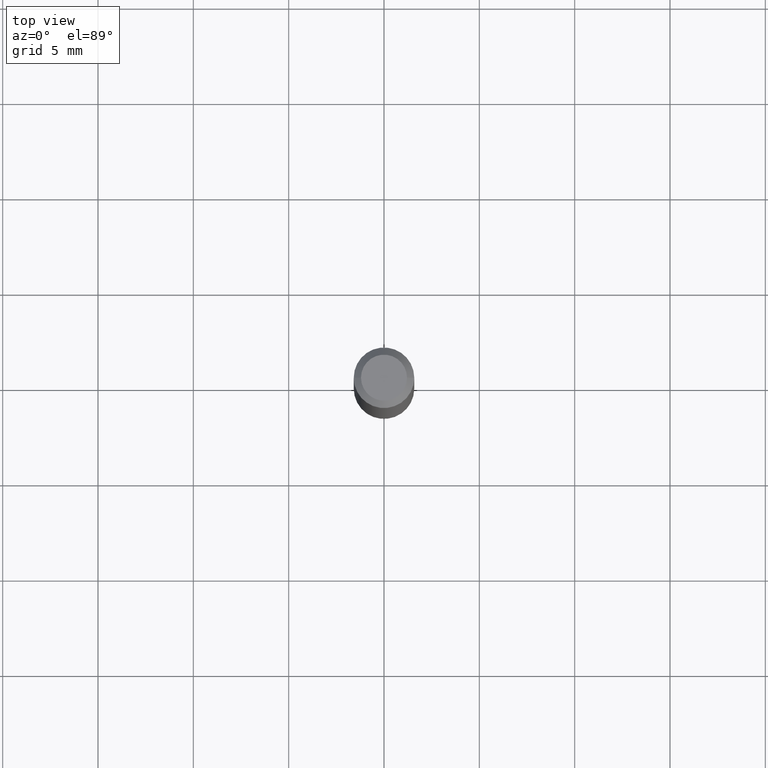
[diagram: clean part render]
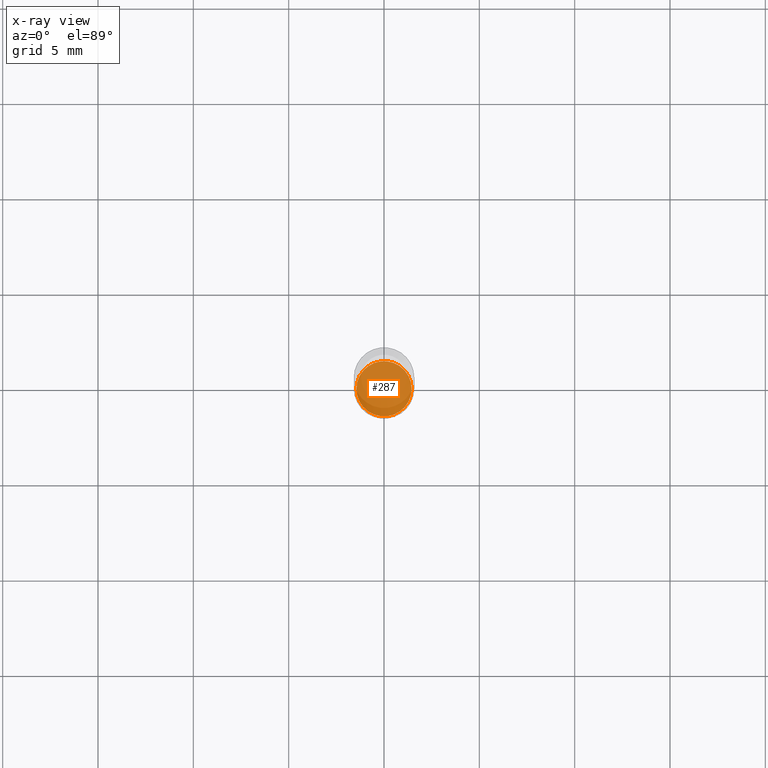
[diagram: x-ray — body ghosted, one internal face saturated and labeled with its STEP entity id]
A machine part, top view, then the same camera in x-ray: the body is ghosted and one INTERNAL B-rep face — a face not visible from any outside direction — is saturated and labeled: STEP entity #287.
In plain terms, the highlighted planar face has unit normal (-0, 0, 1).
Its self-contained STEP definition (entity closure, byte-faithful):
#8 = PLANE ( 'NONE',  #511 ) ;
#15 = CIRCLE ( 'NONE', #320, 0.05700000000000005757 ) ;
#78 = EDGE_CURVE ( 'NONE', #411, #318, #15, .T. ) ;
#103 = DIRECTION ( 'NONE',  ( -2.445468806185136597E-29, 3.491481338843145583E-15, 1.000000000000000000 ) ) ;
#125 = CARTESIAN_POINT ( 'NONE',  ( 3.245137105807676860E-29, -4.633195736644854276E-15, -1.327000000000000179 ) ) ;
#129 = CARTESIAN_POINT ( 'NONE',  ( 0.05700000000000005757, -5.031224609272972078E-15, -1.327000000000000179 ) ) ;
#172 = DIRECTION ( 'NONE',  ( 1.000000000000000000, -6.982962677686265922E-15, 4.876176775795935793E-29 ) ) ;
#180 = CARTESIAN_POINT ( 'NONE',  ( 3.245137105807676860E-29, -4.633195736644854276E-15, -1.327000000000000179 ) ) ;
#225 = DIRECTION ( 'NONE',  ( 1.000000000000000000, -6.982962677686274599E-15, 0.000000000000000000 ) ) ;
#250 = CIRCLE ( 'NONE', #474, 0.05700000000000005757 ) ;
#260 = CARTESIAN_POINT ( 'NONE',  ( -0.05700000000000005757, -4.225537150087485609E-15, -1.327000000000000179 ) ) ;
#287 = ADVANCED_FACE ( 'NONE', ( #489 ), #8, .F. ) ;
#291 = DIRECTION ( 'NONE',  ( 1.000000000000000000, -6.982962677686274599E-15, 0.000000000000000000 ) ) ;
#318 = VERTEX_POINT ( 'NONE', #129 ) ;
#320 = AXIS2_PLACEMENT_3D ( 'NONE', #180, #376, #225 ) ;
#331 = EDGE_CURVE ( 'NONE', #318, #411, #250, .T. ) ;
#376 = DIRECTION ( 'NONE',  ( -2.445468806185136597E-29, 3.491481338843145583E-15, 1.000000000000000000 ) ) ;
#377 = DIRECTION ( 'NONE',  ( -2.438088387897960049E-29, 3.491481338843145188E-15, 1.000000000000000000 ) ) ;
#386 = ORIENTED_EDGE ( 'NONE', *, *, #78, .F. ) ;
#411 = VERTEX_POINT ( 'NONE', #260 ) ;
#423 = ORIENTED_EDGE ( 'NONE', *, *, #331, .F. ) ;
#463 = CARTESIAN_POINT ( 'NONE',  ( 3.245137105807676860E-29, -4.633195736644854276E-15, -1.327000000000000179 ) ) ;
#474 = AXIS2_PLACEMENT_3D ( 'NONE', #463, #103, #291 ) ;
#479 = EDGE_LOOP ( 'NONE', ( #423, #386 ) ) ;
#489 = FACE_OUTER_BOUND ( 'NONE', #479, .T. ) ;
#511 = AXIS2_PLACEMENT_3D ( 'NONE', #125, #377, #172 ) ;